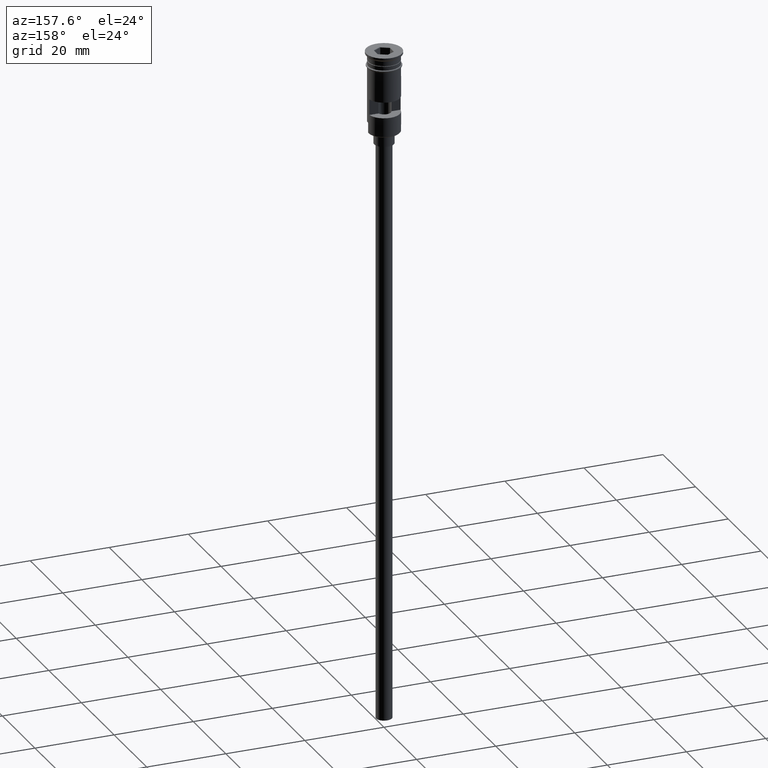
[diagram: clean part render]
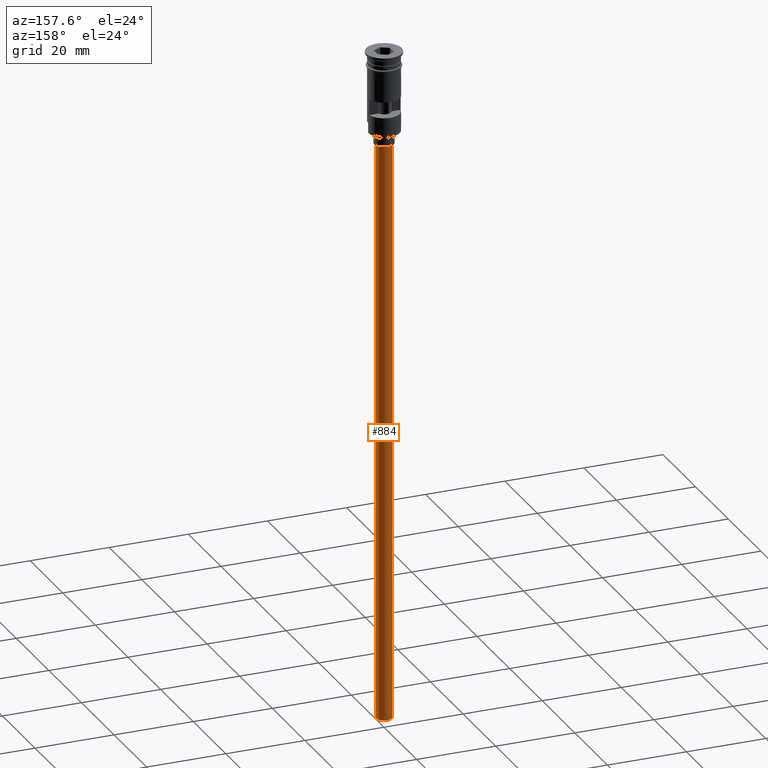
[diagram: same view with one face highlighted and labeled with its STEP entity id]
A machine part, auxiliary view. The second image highlights one B-rep face of the part: STEP entity #884.
In plain terms, the highlighted cylindrical surface (edge-blend (fillet) strip) has radius 2 mm, axis along (-0, -0, 1).
Its self-contained STEP definition (entity closure, byte-faithful):
#17 = CARTESIAN_POINT ( 'NONE',  ( -2.000000000000000000, 2.449293598294706414E-16, -170.4999999999999716 ) ) ;
#21 = CARTESIAN_POINT ( 'NONE',  ( -2.000000000000000000, 2.449293598294706414E-16, -170.4999999999999716 ) ) ;
#22 = FACE_OUTER_BOUND ( 'NONE', #1097, .T. ) ;
#118 = EDGE_CURVE ( 'NONE', #214, #1336, #1264, .T. ) ;
#134 = VECTOR ( 'NONE', #418, 1000.000000000000000 ) ;
#150 = EDGE_CURVE ( 'NONE', #502, #1336, #1538, .T. ) ;
#214 = VERTEX_POINT ( 'NONE', #928 ) ;
#225 = DIRECTION ( 'NONE',  ( 0.000000000000000000, 0.000000000000000000, -1.000000000000000000 ) ) ;
#246 = EDGE_CURVE ( 'NONE', #504, #502, #777, .T. ) ;
#270 = CARTESIAN_POINT ( 'NONE',  ( 2.000000000000000000, 0.000000000000000000, -170.4999999999999716 ) ) ;
#307 = AXIS2_PLACEMENT_3D ( 'NONE', #1352, #225, #1107 ) ;
#377 = CARTESIAN_POINT ( 'NONE',  ( 0.000000000000000000, 0.000000000000000000, -170.4999999999999716 ) ) ;
#395 = CARTESIAN_POINT ( 'NONE',  ( 0.000000000000000000, 0.000000000000000000, -23.49999999999999645 ) ) ;
#418 = DIRECTION ( 'NONE',  ( -0.000000000000000000, -0.000000000000000000, 1.000000000000000000 ) ) ;
#450 = ORIENTED_EDGE ( 'NONE', *, *, #118, .T. ) ;
#502 = VERTEX_POINT ( 'NONE', #270 ) ;
#504 = VERTEX_POINT ( 'NONE', #17 ) ;
#589 = ORIENTED_EDGE ( 'NONE', *, *, #246, .F. ) ;
#610 = CARTESIAN_POINT ( 'NONE',  ( 2.000000000000000000, 0.000000000000000000, -23.49999999999999645 ) ) ;
#628 = VECTOR ( 'NONE', #1254, 1000.000000000000000 ) ;
#629 = DIRECTION ( 'NONE',  ( -0.000000000000000000, -0.000000000000000000, 1.000000000000000000 ) ) ;
#636 = LINE ( 'NONE', #21, #628 ) ;
#653 = AXIS2_PLACEMENT_3D ( 'NONE', #377, #629, #1513 ) ;
#777 = CIRCLE ( 'NONE', #307, 2.000000000000000000 ) ;
#830 = ORIENTED_EDGE ( 'NONE', *, *, #1390, .T. ) ;
#871 = CYLINDRICAL_SURFACE ( 'NONE', #653, 2.000000000000000000 ) ;
#884 = ADVANCED_FACE ( 'NONE', ( #22 ), #871, .T. ) ;
#896 = DIRECTION ( 'NONE',  ( -1.000000000000000000, 0.000000000000000000, 0.000000000000000000 ) ) ;
#928 = CARTESIAN_POINT ( 'NONE',  ( -2.000000000000000000, 2.449293598294706414E-16, -23.49999999999999645 ) ) ;
#1062 = ORIENTED_EDGE ( 'NONE', *, *, #150, .F. ) ;
#1097 = EDGE_LOOP ( 'NONE', ( #589, #830, #450, #1062 ) ) ;
#1107 = DIRECTION ( 'NONE',  ( -1.000000000000000000, 0.000000000000000000, 0.000000000000000000 ) ) ;
#1254 = DIRECTION ( 'NONE',  ( -0.000000000000000000, -0.000000000000000000, 1.000000000000000000 ) ) ;
#1264 = CIRCLE ( 'NONE', #1529, 2.000000000000000000 ) ;
#1336 = VERTEX_POINT ( 'NONE', #610 ) ;
#1352 = CARTESIAN_POINT ( 'NONE',  ( 0.000000000000000000, 0.000000000000000000, -170.4999999999999716 ) ) ;
#1390 = EDGE_CURVE ( 'NONE', #504, #214, #636, .T. ) ;
#1513 = DIRECTION ( 'NONE',  ( 1.000000000000000000, 0.000000000000000000, 0.000000000000000000 ) ) ;
#1524 = DIRECTION ( 'NONE',  ( 0.000000000000000000, 0.000000000000000000, -1.000000000000000000 ) ) ;
#1529 = AXIS2_PLACEMENT_3D ( 'NONE', #395, #1524, #896 ) ;
#1532 = CARTESIAN_POINT ( 'NONE',  ( 2.000000000000000000, 0.000000000000000000, -170.4999999999999716 ) ) ;
#1538 = LINE ( 'NONE', #1532, #134 ) ;